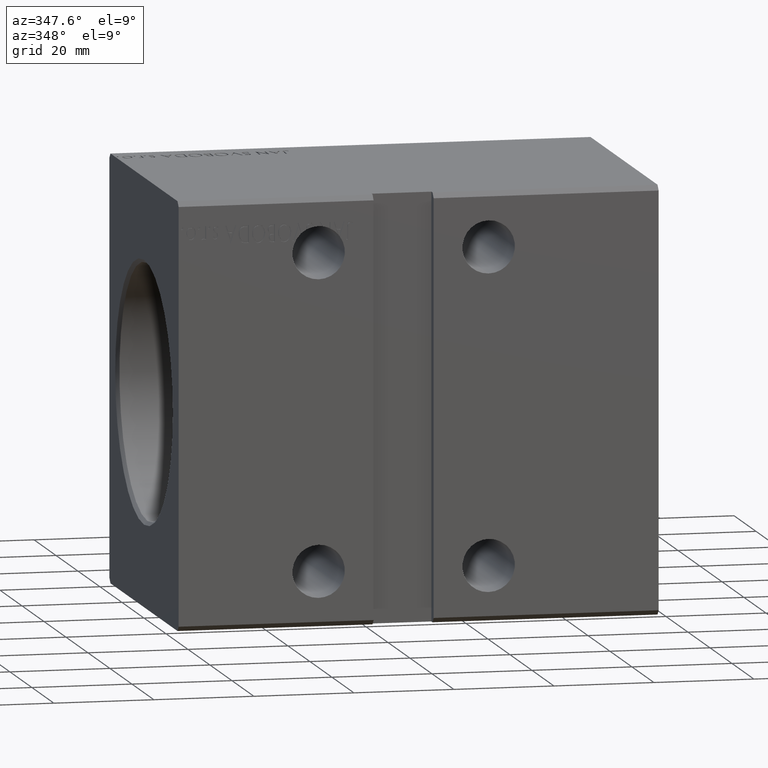
[diagram: clean part render]
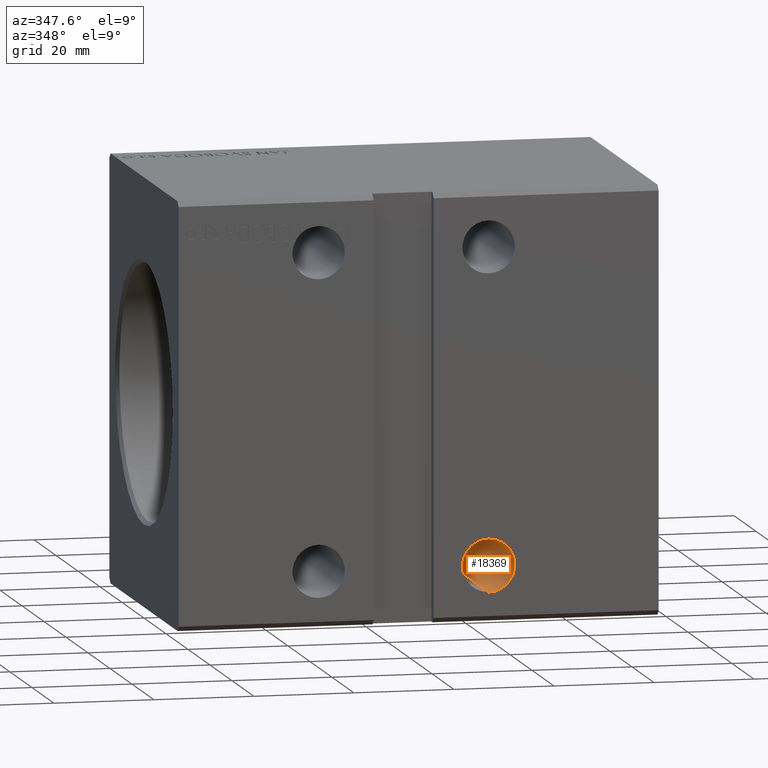
[diagram: same view with one face highlighted and labeled with its STEP entity id]
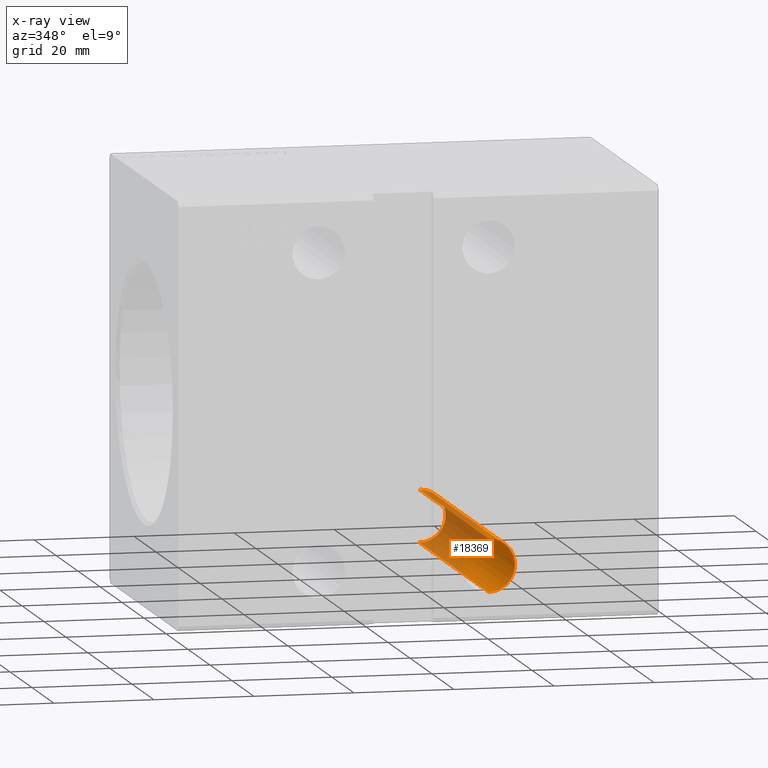
[diagram: x-ray of the same camera — body ghosted, the highlighted face saturated]
A machine part, auxiliary view. The second image highlights one B-rep face of the part: STEP entity #18369.
The next image is the same camera in x-ray: the body ghosted, the highlighted face saturated — about 49% of this face is hidden behind the body in this view.
In plain terms, the highlighted cylindrical surface (edge-blend (fillet) strip) has radius 5.25 mm, axis along (-0, -1, -0).
Its self-contained STEP definition (entity closure, byte-faithful):
#1265 = DIRECTION ( 'NONE',  ( -0.000000000000000000, -1.000000000000000000, -5.507058653894625853E-17 ) ) ;
#2664 = VERTEX_POINT ( 'NONE', #27690 ) ;
#3116 = ORIENTED_EDGE ( 'NONE', *, *, #14943, .F. ) ;
#4862 = CIRCLE ( 'NONE', #26255, 5.249999999999997335 ) ;
#5261 = EDGE_CURVE ( 'NONE', #2664, #11444, #33976, .T. ) ;
#5712 = DIRECTION ( 'NONE',  ( 0.000000000000000000, -1.000000000000000000, -5.507058653894625853E-17 ) ) ;
#6214 = VECTOR ( 'NONE', #1265, 1000.000000000000000 ) ;
#6843 = VERTEX_POINT ( 'NONE', #30266 ) ;
#7261 = CARTESIAN_POINT ( 'NONE',  ( 62.00000000000000711, -31.50000000000000000, -26.25000000000000355 ) ) ;
#8501 = EDGE_CURVE ( 'NONE', #2664, #6843, #9422, .T. ) ;
#9422 = CIRCLE ( 'NONE', #28833, 5.249999999999997335 ) ;
#9868 = DIRECTION ( 'NONE',  ( -0.000000000000000000, -1.000000000000000000, -5.507058653894625853E-17 ) ) ;
#10187 = CARTESIAN_POINT ( 'NONE',  ( 62.00000000000000711, -31.50000000000000000, -36.75000000000000000 ) ) ;
#10195 = CARTESIAN_POINT ( 'NONE',  ( 62.00000000000000711, -31.50000000000000000, -31.50000000000000000 ) ) ;
#11444 = VERTEX_POINT ( 'NONE', #10187 ) ;
#11947 = EDGE_CURVE ( 'NONE', #39584, #11444, #4862, .T. ) ;
#12186 = DIRECTION ( 'NONE',  ( 0.000000000000000000, 0.000000000000000000, -1.000000000000000000 ) ) ;
#14943 = EDGE_CURVE ( 'NONE', #6843, #39584, #38097, .T. ) ;
#16556 = CARTESIAN_POINT ( 'NONE',  ( 62.00000000000000711, 31.50000000000002842, -31.49999999999999289 ) ) ;
#17900 = ORIENTED_EDGE ( 'NONE', *, *, #11947, .F. ) ;
#18369 = ADVANCED_FACE ( 'NONE', ( #22827 ), #28701, .F. ) ;
#19020 = ORIENTED_EDGE ( 'NONE', *, *, #5261, .T. ) ;
#19713 = DIRECTION ( 'NONE',  ( -0.000000000000000000, 1.000000000000000000, 0.000000000000000000 ) ) ;
#22311 = VECTOR ( 'NONE', #9868, 1000.000000000000000 ) ;
#22827 = FACE_OUTER_BOUND ( 'NONE', #24373, .T. ) ;
#24373 = EDGE_LOOP ( 'NONE', ( #3116, #35872, #19020, #17900 ) ) ;
#26189 = DIRECTION ( 'NONE',  ( 0.000000000000000000, 0.000000000000000000, 1.000000000000000000 ) ) ;
#26255 = AXIS2_PLACEMENT_3D ( 'NONE', #10195, #19713, #26189 ) ;
#26865 = AXIS2_PLACEMENT_3D ( 'NONE', #16556, #34353, #38201 ) ;
#27690 = CARTESIAN_POINT ( 'NONE',  ( 62.00000000000000711, 31.50000000000002842, -36.74999999999999289 ) ) ;
#28104 = CARTESIAN_POINT ( 'NONE',  ( 62.00000000000000711, 31.50000000000002842, -36.74999999999999289 ) ) ;
#28701 = CYLINDRICAL_SURFACE ( 'NONE', #26865, 5.249999999999997335 ) ;
#28833 = AXIS2_PLACEMENT_3D ( 'NONE', #33837, #5712, #12186 ) ;
#30266 = CARTESIAN_POINT ( 'NONE',  ( 62.00000000000000711, 31.50000000000002842, -26.24999999999999645 ) ) ;
#33837 = CARTESIAN_POINT ( 'NONE',  ( 62.00000000000000711, 31.50000000000002842, -31.49999999999999289 ) ) ;
#33976 = LINE ( 'NONE', #28104, #22311 ) ;
#34353 = DIRECTION ( 'NONE',  ( -0.000000000000000000, -1.000000000000000000, -5.507058653894625853E-17 ) ) ;
#34661 = CARTESIAN_POINT ( 'NONE',  ( 62.00000000000000711, 31.50000000000002842, -26.24999999999999645 ) ) ;
#35872 = ORIENTED_EDGE ( 'NONE', *, *, #8501, .F. ) ;
#38097 = LINE ( 'NONE', #34661, #6214 ) ;
#38201 = DIRECTION ( 'NONE',  ( 0.000000000000000000, 0.000000000000000000, -1.000000000000000000 ) ) ;
#39584 = VERTEX_POINT ( 'NONE', #7261 ) ;